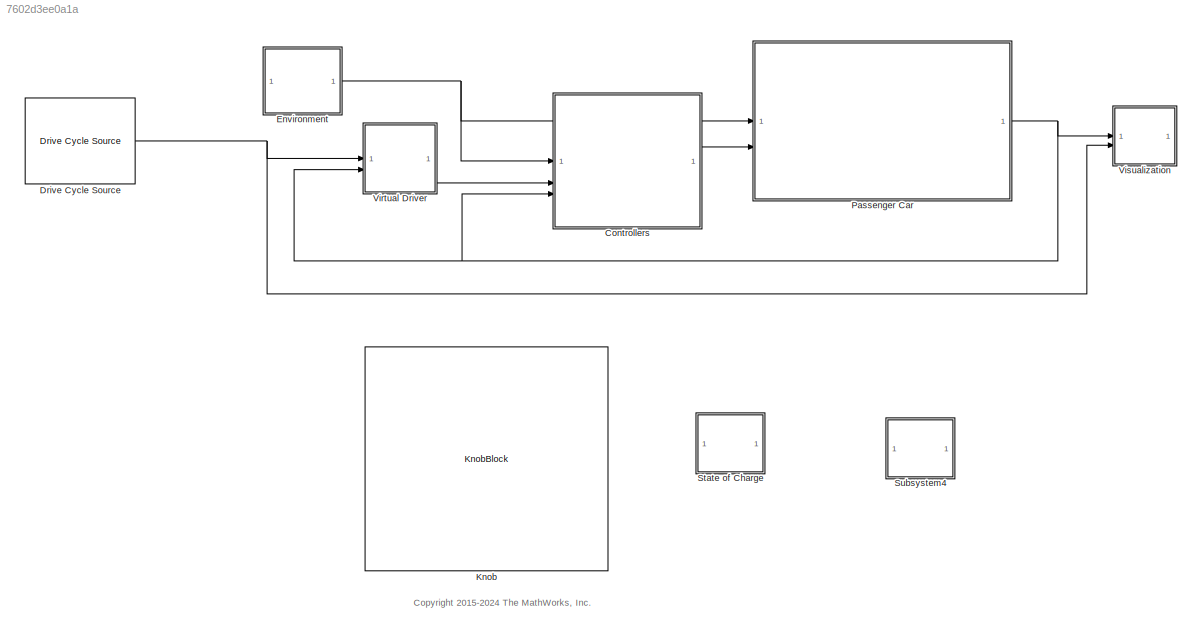
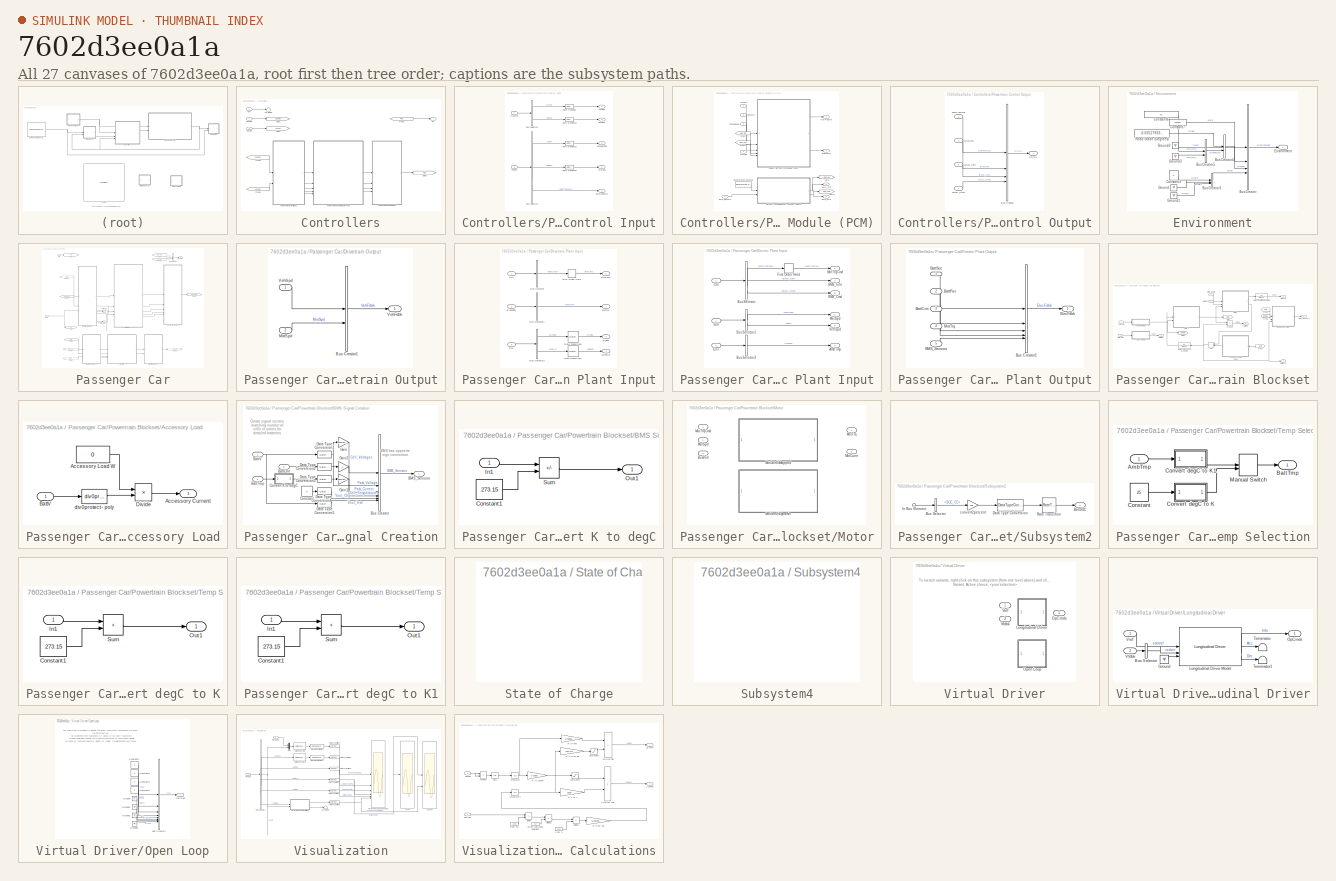
[diagram: thumbnail index - all 27 canvases of the model, root first then tree order]
MODEL slx_7602d3ee0a1a
KIND model
CONFIG AbsTol = auto
CONFIG EnableMultiTasking = off
CONFIG FixedStep = auto
CONFIG MaxStep = auto
CONFIG MinStep = auto
CONFIG RelTol = 1e-3
CONFIG SampleTimeConstraint = Unconstrained
CONFIG SolverName = VariableStepAuto
CONFIG StartTime = 0.0
CONFIG StopTime = 10.0
BLOCK [SubSystem] Controllers
BLOCK [Outport] Controllers/Ctrl
  VectorParamsAs1DForOutWhenUnconnected = off
BLOCK [Inport] Controllers/Env
BLOCK [From] Controllers/From2
  GotoTag = PtCtrl
BLOCK [From] Controllers/From5
  GotoTag = OpCmds
BLOCK [From] Controllers/From6
  GotoTag = VehPlnt
BLOCK [Goto] Controllers/Goto1
  GotoTag = OpCmds
BLOCK [Goto] Controllers/Goto2
  GotoTag = VehPlnt
BLOCK [Goto] Controllers/Goto9
  GotoTag = PtCtrl
BLOCK [Inport] Controllers/OpCmds
  Port = 2
BLOCK [SubSystem] Controllers/Powertrain Control Input
BLOCK [Outport] Controllers/Powertrain Control Input/AccelPdl
  VectorParamsAs1DForOutWhenUnconnected = off
BLOCK [Outport] Controllers/Powertrain Control Input/BMS_Sensors
  OutDataTypeStr = Bus: Sensors
  Port = 5
  VectorParamsAs1DForOutWhenUnconnected = off
BLOCK [BusSelector] Controllers/Powertrain Control Input/Bus Selector1
  OutputSignals = Veh.xdot,Veh.MotSpd,Elec.BMS_Sensors
BLOCK [BusSelector] Controllers/Powertrain Control Input/Bus Selector2
  OutputSignals = Accel,Decel
BLOCK [Outport] Controllers/Powertrain Control Input/DecelPdl
  Port = 2
  VectorParamsAs1DForOutWhenUnconnected = off
BLOCK [Outport] Controllers/Powertrain Control Input/MotSpd
  Port = 4
  VectorParamsAs1DForOutWhenUnconnected = off
BLOCK [Inport] Controllers/Powertrain Control Input/OpCmds
BLOCK [RateTransition] Controllers/Powertrain Control Input/Rate Transition
  Deterministic = off
BLOCK [RateTransition] Controllers/Powertrain Control Input/Rate Transition1
  Deterministic = off
BLOCK [RateTransition] Controllers/Powertrain Control Input/Rate Transition2
  Deterministic = off
BLOCK [RateTransition] Controllers/Powertrain Control Input/Rate Transition6
  Deterministic = off
BLOCK [Inport] Controllers/Powertrain Control Input/VehPlnt
  Port = 2
BLOCK [Outport] Controllers/Powertrain Control Input/VehSpdFdbk
  Port = 3
  VectorParamsAs1DForOutWhenUnconnected = off
BLOCK [SubSystem] Controllers/Powertrain Control Module (PCM)
BLOCK [Inport] Controllers/Powertrain Control Module (PCM)/AccCmd
BLOCK [Outport] Controllers/Powertrain Control Module (PCM)/BMS_Cmd
  OutDataTypeStr = Bus: BMS_Cmd
  Port = 4
BLOCK [Outport] Controllers/Powertrain Control Module (PCM)/BMS_Info
  OutDataTypeStr = Bus: BMS_Info
  Port = 3
BLOCK [Inport] Controllers/Powertrain Control Module (PCM)/BMS_Sensors
  OutDataTypeStr = Bus: Sensors
  Port = 5
BLOCK [ModelReference] Controllers/Powertrain Control Module (PCM)/Battery Management System (BMS)
  ModelNameDialog = BMS_Software.slx
  ModelReferenceVersion = 8.0
BLOCK [Outport] Controllers/Powertrain Control Module (PCM)/BrakeCmd
  Port = 2
BLOCK [Inport] Controllers/Powertrain Control Module (PCM)/DecCmd
  Port = 2
BLOCK [Reference] Controllers/Powertrain Control Module (PCM)/Enumerated Constant  REF=simulink/Sources/Enumerated
Constant
  SourceBlock = simulink/Sources/Enumerated\nConstant
  SourceType = Enumerated Constant
BLOCK [From] Controllers/Powertrain Control Module (PCM)/From
  GotoTag = BMS_Info
BLOCK [From] Controllers/Powertrain Control Module (PCM)/From1
  GotoTag = BMS_Cmd
BLOCK [Goto] Controllers/Powertrain Control Module (PCM)/Goto
  GotoTag = BMS_Info
BLOCK [Goto] Controllers/Powertrain Control Module (PCM)/Goto1
  GotoTag = BMS_Cmd
BLOCK [Inport] Controllers/Powertrain Control Module (PCM)/MotSpd
  Port = 4
BLOCK [Outport] Controllers/Powertrain Control Module (PCM)/MotTrqCmd
BLOCK [ModelReference] Controllers/Powertrain Control Module (PCM)/Powertrain Control Module (PCM)
  ModelNameDialog = EvPowertrainController.slx
  ModelReferenceVersion = 8.0
BLOCK [Inport] Controllers/Powertrain Control Module (PCM)/VehSpdFdbk
  Port = 3
BLOCK [SubSystem] Controllers/Powertrain Control Output
BLOCK [Inport] Controllers/Powertrain Control Output/BMS_Cmd
  OutDataTypeStr = Bus: BMS_Cmd
  Port = 4
BLOCK [Inport] Controllers/Powertrain Control Output/BMS_Info
  OutDataTypeStr = Bus: BMS_Info
  Port = 3
BLOCK [Inport] Controllers/Powertrain Control Output/BrkCmd
  Port = 2
BLOCK [BusCreator] Controllers/Powertrain Control Output/Bus Creator
  DisplayOption = bar
  InheritFromInputs = on
  Inputs = 4
BLOCK [Inport] Controllers/Powertrain Control Output/MotTrqCmd
BLOCK [Outport] Controllers/Powertrain Control Output/PtCtrl
  VectorParamsAs1DForOutWhenUnconnected = off
BLOCK [Terminator] Controllers/Terminator
BLOCK [Inport] Controllers/VehPlnt
  Port = 3
BLOCK [Reference] Drive Cycle Source  REF=autolibshared/Drive Cycle Source
  AttributesFormatString = %<cycleVar> (%<tfinal>)
  LibrarySourceBlock = autolibscenario/Drive Cycle Source
  SourceBlock = autolibshared/Drive Cycle Source
  SourceType = Drive Cycle Source
BLOCK [SubSystem] Environment
BLOCK [BusCreator] Environment/Bus Creator
  DisplayOption = bar
  InheritFromInputs = on
  Inputs = 4
BLOCK [BusCreator] Environment/Bus Creator3
  DisplayOption = bar
  InheritFromInputs = on
  Inputs = 3
BLOCK [BusCreator] Environment/Bus Creator4
  DisplayOption = bar
  InheritFromInputs = on
  Inputs = 2
BLOCK [BusCreator] Environment/Bus Creator5
  DisplayOption = bar
  InheritFromInputs = on
  Inputs = 2
BLOCK [Constant] Environment/Constant3
  Value = 0
BLOCK [Constant] Environment/Constant6
  Value = 20
BLOCK [Constant] Environment/Constant7
  Value = 101325
BLOCK [Outport] Environment/Environment
  VectorParamsAs1DForOutWhenUnconnected = off
BLOCK [Ground] Environment/Ground
BLOCK [Ground] Environment/Ground1
BLOCK [Ground] Environment/Ground2
BLOCK [Ground] Environment/Ground3
BLOCK [Constant] Environment/Road Grade (Degrees)
  AttributesFormatString = %<Name>
  Value = -0.03527933756510393
BLOCK [KnobBlock] Knob
  LabelPosition = Bottom
  ScaleMax = 5
  ScaleMin = -5
  TickInterval = 1
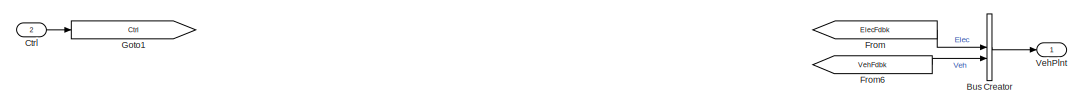
[diagram: Passenger Car - part 1/2, full width, top band]
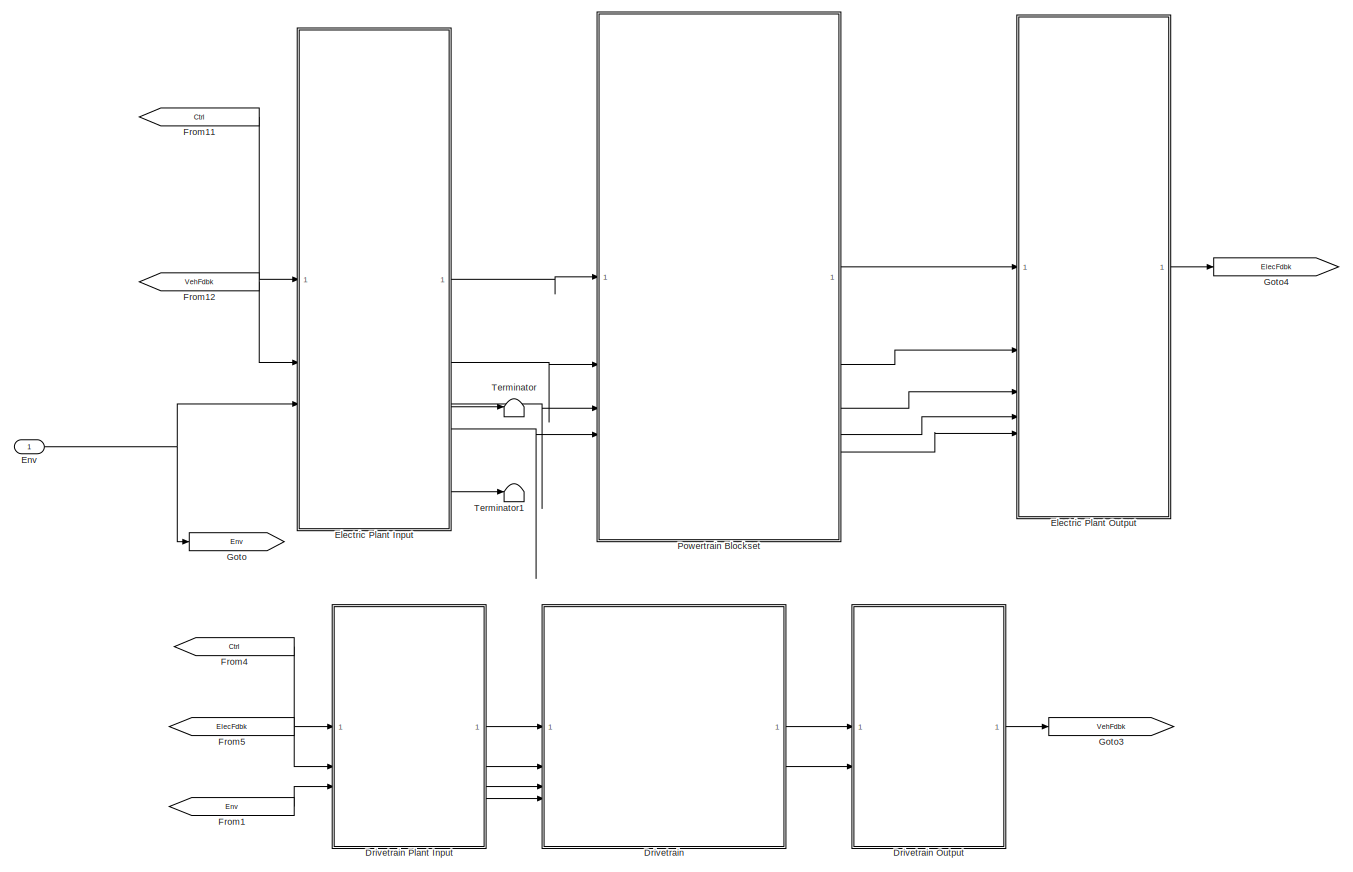
[diagram: Passenger Car - part 2/2, most of the canvas]
BLOCK [SubSystem] Passenger Car
BLOCK [BusCreator] Passenger Car/Bus Creator
  DisplayOption = bar
  InheritFromInputs = on
  Inputs = 2
BLOCK [Inport] Passenger Car/Ctrl
  Port = 2
BLOCK [ModelReference] Passenger Car/Drivetrain
  ModelNameDialog = DrivetrainEv.slx
  ModelReferenceVersion = 10.0
BLOCK [SubSystem] Passenger Car/Drivetrain Output
BLOCK [BusCreator] Passenger Car/Drivetrain Output/Bus Creator1
  DisplayOption = bar
  InheritFromInputs = on
  Inputs = 2
BLOCK [Inport] Passenger Car/Drivetrain Output/MotSpd
  Port = 2
BLOCK [Outport] Passenger Car/Drivetrain Output/VehFdbk
  VectorParamsAs1DForOutWhenUnconnected = off
BLOCK [Inport] Passenger Car/Drivetrain Output/VehSpd
BLOCK [SubSystem] Passenger Car/Drivetrain Plant Input
BLOCK [Outport] Passenger Car/Drivetrain Plant Input/BrkCmd
  Port = 2
  VectorParamsAs1DForOutWhenUnconnected = off
BLOCK [BusSelector] Passenger Car/Drivetrain Plant Input/Bus Selector
  OutputSignals = BrkCmd
BLOCK [BusSelector] Passenger Car/Drivetrain Plant Input/Bus Selector1
  OutputSignals = MotTrq
BLOCK [BusSelector] Passenger Car/Drivetrain Plant Input/Bus Selector3
  OutputSignals = Ground.Grade,Wind.wind_x
BLOCK [Inport] Passenger Car/Drivetrain Plant Input/Ctrl
BLOCK [Inport] Passenger Car/Drivetrain Plant Input/ElecFdbk
  Port = 2
BLOCK [Inport] Passenger Car/Drivetrain Plant Input/Env
  Port = 3
BLOCK [FirstOrderHold] Passenger Car/Drivetrain Plant Input/First Order Hold
  ErrorTolerance = inf
BLOCK [Outport] Passenger Car/Drivetrain Plant Input/Grade
  Port = 3
  VectorParamsAs1DForOutWhenUnconnected = off
BLOCK [Outport] Passenger Car/Drivetrain Plant Input/MotTrq
  VectorParamsAs1DForOutWhenUnconnected = off
BLOCK [RateTransition] Passenger Car/Drivetrain Plant Input/Rate Transition6
  Deterministic = off
BLOCK [RateTransition] Passenger Car/Drivetrain Plant Input/Rate Transition7
  Deterministic = off
BLOCK [Outport] Passenger Car/Drivetrain Plant Input/WindVel
  Port = 4
  VectorParamsAs1DForOutWhenUnconnected = off
BLOCK [SubSystem] Passenger Car/Electric Plant Input
BLOCK [Outport] Passenger Car/Electric Plant Input/AmbTmp
  Port = 3
  VectorParamsAs1DForOutWhenUnconnected = off
BLOCK [Outport] Passenger Car/Electric Plant Input/BMS_Cmd
  OutDataTypeStr = Bus: BMS_Cmd
  Port = 5
  VectorParamsAs1DForOutWhenUnconnected = off
BLOCK [Outport] Passenger Car/Electric Plant Input/BMS_Info
  OutDataTypeStr = Bus: BMS_Info
  Port = 4
  VectorParamsAs1DForOutWhenUnconnected = off
BLOCK [BusSelector] Passenger Car/Electric Plant Input/Bus Selector
  OutputSignals = MotTrqCmd,BMS_Info,BMS_Cmd
BLOCK [BusSelector] Passenger Car/Electric Plant Input/Bus Selector1
  OutputSignals = MotSpd,xdot
BLOCK [BusSelector] Passenger Car/Electric Plant Input/Bus Selector2
  OutputSignals = Temp
BLOCK [Inport] Passenger Car/Electric Plant Input/Ctrl
BLOCK [Inport] Passenger Car/Electric Plant Input/Env
  Port = 3
BLOCK [FirstOrderHold] Passenger Car/Electric Plant Input/First Order Hold
  ErrorTolerance = inf
BLOCK [Outport] Passenger Car/Electric Plant Input/MotSpd
  Port = 2
  VectorParamsAs1DForOutWhenUnconnected = off
BLOCK [Outport] Passenger Car/Electric Plant Input/MotTrqCmd
  VectorParamsAs1DForOutWhenUnconnected = off
BLOCK [Inport] Passenger Car/Electric Plant Input/Veh
  Port = 2
BLOCK [Outport] Passenger Car/Electric Plant Input/VehSpd
  Port = 6
  VectorParamsAs1DForOutWhenUnconnected = off
BLOCK [SubSystem] Passenger Car/Electric Plant Output
BLOCK [Inport] Passenger Car/Electric Plant Output/BMS_Sensors
  OutDataTypeStr = Bus: Sensors
  Port = 5
BLOCK [Inport] Passenger Car/Electric Plant Output/BattCrnt
  Port = 3
BLOCK [Inport] Passenger Car/Electric Plant Output/BattPwr
  Port = 2
BLOCK [Inport] Passenger Car/Electric Plant Output/BattSoc
BLOCK [BusCreator] Passenger Car/Electric Plant Output/Bus Creator1
  DisplayOption = bar
  InheritFromInputs = on
  Inputs = 5
BLOCK [Outport] Passenger Car/Electric Plant Output/ElecFdbk
  VectorParamsAs1DForOutWhenUnconnected = off
BLOCK [Inport] Passenger Car/Electric Plant Output/MotTrq
  Port = 4
BLOCK [Inport] Passenger Car/Env
BLOCK [From] Passenger Car/From
  GotoTag = ElecFdbk
BLOCK [From] Passenger Car/From1
  GotoTag = Env
BLOCK [From] Passenger Car/From11
  GotoTag = Ctrl
BLOCK [From] Passenger Car/From12
  GotoTag = VehFdbk
BLOCK [From] Passenger Car/From4
  GotoTag = Ctrl
BLOCK [From] Passenger Car/From5
  GotoTag = ElecFdbk
BLOCK [From] Passenger Car/From6
  GotoTag = VehFdbk
BLOCK [Goto] Passenger Car/Goto
  GotoTag = Env
BLOCK [Goto] Passenger Car/Goto1
  GotoTag = Ctrl
BLOCK [Goto] Passenger Car/Goto3
  GotoTag = VehFdbk
BLOCK [Goto] Passenger Car/Goto4
  GotoTag = ElecFdbk
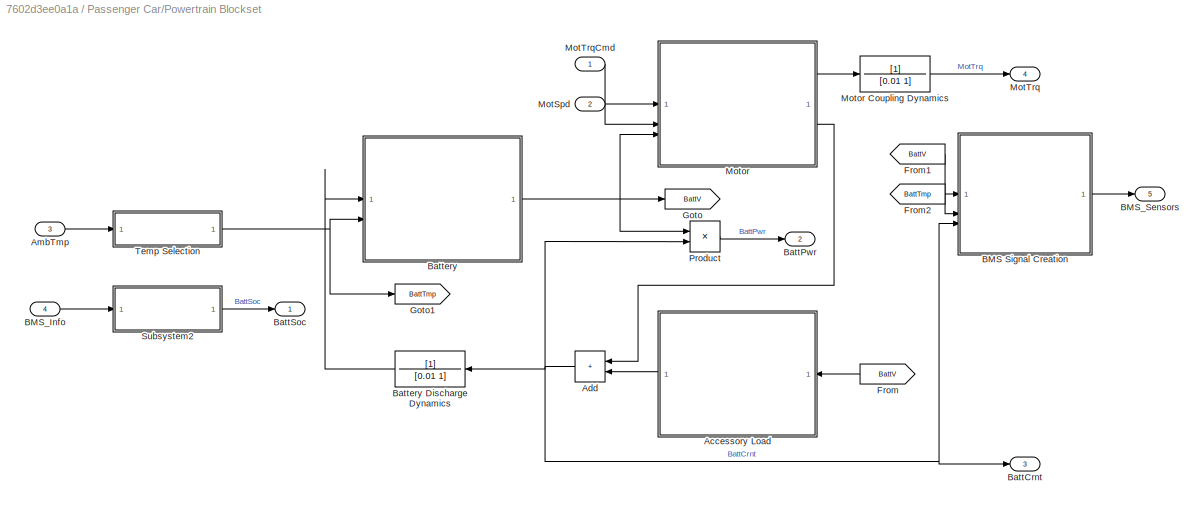
BLOCK [SubSystem] Passenger Car/Powertrain Blockset
  VariantControl = Powertrain Blockset
BLOCK [SubSystem] Passenger Car/Powertrain Blockset/Accessory Load
BLOCK [Outport] Passenger Car/Powertrain Blockset/Accessory Load/Accessory Current
BLOCK [Constant] Passenger Car/Powertrain Blockset/Accessory Load/Accessory Load W
  Value = 0
BLOCK [Inport] Passenger Car/Powertrain Blockset/Accessory Load/BattV
BLOCK [Product] Passenger Car/Powertrain Blockset/Accessory Load/Divide
  Inputs = */
BLOCK [Reference] Passenger Car/Powertrain Blockset/Accessory Load/div0protect - poly  REF=autolibutils/div0protect - poly
  SourceBlock = autolibutils/div0protect - poly
BLOCK [Sum] Passenger Car/Powertrain Blockset/Add
  IconShape = rectangular
BLOCK [Inport] Passenger Car/Powertrain Blockset/AmbTmp
  Port = 3
BLOCK [SubSystem] Passenger Car/Powertrain Blockset/BMS Signal Creation
BLOCK [Outport] Passenger Car/Powertrain Blockset/BMS Signal Creation/BMS_Sensors
BLOCK [Inport] Passenger Car/Powertrain Blockset/BMS Signal Creation/BattCrnt
  Port = 3
BLOCK [Inport] Passenger Car/Powertrain Blockset/BMS Signal Creation/BattTmp
  Port = 2
BLOCK [Inport] Passenger Car/Powertrain Blockset/BMS Signal Creation/BattV
BLOCK [BusCreator] Passenger Car/Powertrain Blockset/BMS Signal Creation/Bus Creator
  DisplayOption = bar
  InheritFromInputs = off
  Inputs = 6
  NonVirtualBus = on
  OutDataTypeStr = Bus: Sensors
BLOCK [Constant] Passenger Car/Powertrain Blockset/BMS Signal Creation/Constant
  Value = 0
BLOCK [SubSystem] Passenger Car/Powertrain Blockset/BMS Signal Creation/Convert K to degC
BLOCK [Constant] Passenger Car/Powertrain Blockset/BMS Signal Creation/Convert K to degC/Constant1
  Value = 273.15
BLOCK [Inport] Passenger Car/Powertrain Blockset/BMS Signal Creation/Convert K to degC/In1
BLOCK [Outport] Passenger Car/Powertrain Blockset/BMS Signal Creation/Convert K to degC/Out1
BLOCK [Sum] Passenger Car/Powertrain Blockset/BMS Signal Creation/Convert K to degC/Sum
  IconShape = rectangular
  Inputs = +-
BLOCK [DataTypeConversion] Passenger Car/Powertrain Blockset/BMS Signal Creation/Data Type Conversion1
  OutDataTypeStr = single
  RndMeth = Floor
  SaturateOnIntegerOverflow = off
BLOCK [DataTypeConversion] Passenger Car/Powertrain Blockset/BMS Signal Creation/Data Type Conversion2
  OutDataTypeStr = single
  RndMeth = Floor
  SaturateOnIntegerOverflow = off
BLOCK [DataTypeConversion] Passenger Car/Powertrain Blockset/BMS Signal Creation/Data Type Conversion3
  OutDataTypeStr = single
  RndMeth = Floor
  SaturateOnIntegerOverflow = off
BLOCK [DataTypeConversion] Passenger Car/Powertrain Blockset/BMS Signal Creation/Data Type Conversion4
  OutDataTypeStr = single
  RndMeth = Floor
  SaturateOnIntegerOverflow = off
BLOCK [DataTypeConversion] Passenger Car/Powertrain Blockset/BMS Signal Creation/Data Type Conversion5
  OutDataTypeStr = single
  RndMeth = Floor
  SaturateOnIntegerOverflow = off
BLOCK [Gain] Passenger Car/Powertrain Blockset/BMS Signal Creation/Gain
  Gain = ones(96,1)./96
BLOCK [Gain] Passenger Car/Powertrain Blockset/BMS Signal Creation/Gain1
  Gain = ones(96,1)
BLOCK [Gain] Passenger Car/Powertrain Blockset/BMS Signal Creation/Gain2
  Gain = -1
BLOCK [Inport] Passenger Car/Powertrain Blockset/BMS_Info
  OutDataTypeStr = Bus: BMS_Info
  Port = 4
BLOCK [Outport] Passenger Car/Powertrain Blockset/BMS_Sensors
  OutDataTypeStr = Bus: Sensors
  Port = 5
  VectorParamsAs1DForOutWhenUnconnected = off
BLOCK [Outport] Passenger Car/Powertrain Blockset/BattCrnt
  Port = 3
  VectorParamsAs1DForOutWhenUnconnected = off
BLOCK [Outport] Passenger Car/Powertrain Blockset/BattPwr
  Port = 2
  VectorParamsAs1DForOutWhenUnconnected = off
BLOCK [Outport] Passenger Car/Powertrain Blockset/BattSoc
BLOCK [ModelReference] Passenger Car/Powertrain Blockset/Battery
  ModelNameDialog = BattEv.slx
  ModelReferenceVersion = 12.4
BLOCK [TransferFcn] Passenger Car/Powertrain Blockset/Battery Discharge Dynamics
  Denominator = [0.01 1]
BLOCK [From] Passenger Car/Powertrain Blockset/From
  GotoTag = BattV
  NameLocation = top
BLOCK [From] Passenger Car/Powertrain Blockset/From1
  GotoTag = BattV
BLOCK [From] Passenger Car/Powertrain Blockset/From2
  GotoTag = BattTmp
BLOCK [Goto] Passenger Car/Powertrain Blockset/Goto
  GotoTag = BattV
BLOCK [Goto] Passenger Car/Powertrain Blockset/Goto1
  GotoTag = BattTmp
BLOCK [Inport] Passenger Car/Powertrain Blockset/MotSpd
  Port = 2
BLOCK [Outport] Passenger Car/Powertrain Blockset/MotTrq
  Port = 4
  VectorParamsAs1DForOutWhenUnconnected = off
BLOCK [Inport] Passenger Car/Powertrain Blockset/MotTrqCmd
BLOCK [SubSystem] Passenger Car/Powertrain Blockset/Motor
  LabelModeActiveChoice = MotGenEvMapped
  Variant = on
  VariantControlMode = label
BLOCK [TransferFcn] Passenger Car/Powertrain Blockset/Motor Coupling Dynamics
  Denominator = [0.01 1]
BLOCK [Inport] Passenger Car/Powertrain Blockset/Motor/BusVolt
  Port = 3
BLOCK [Outport] Passenger Car/Powertrain Blockset/Motor/MotCurnt
  Port = 2
  VectorParamsAs1DForOutWhenUnconnected = off
BLOCK [ModelReference] Passenger Car/Powertrain Blockset/Motor/MotGenEvDynamic
  ModelNameDialog = MotGenEvDynamic.slx
  ModelReferenceVersion = 11.0
  VariantControl = MotGenEvDynamic
BLOCK [ModelReference] Passenger Car/Powertrain Blockset/Motor/MotGenEvMapped
  ModelNameDialog = MotGenEvMapped.slx
  ModelReferenceVersion = 9.0
  VariantControl = MotGenEvMapped
BLOCK [Inport] Passenger Car/Powertrain Blockset/Motor/MotSpd
  Port = 2
BLOCK [Outport] Passenger Car/Powertrain Blockset/Motor/MotTrq
  VectorParamsAs1DForOutWhenUnconnected = off
BLOCK [Inport] Passenger Car/Powertrain Blockset/Motor/MotTrqCmd
BLOCK [Product] Passenger Car/Powertrain Blockset/Product
BLOCK [SubSystem] Passenger Car/Powertrain Blockset/Subsystem2
BLOCK [Outport] Passenger Car/Powertrain Blockset/Subsystem2/BattSOC
BLOCK [BusSelector] Passenger Car/Powertrain Blockset/Subsystem2/Bus Selector
  OutputSignals = SOC_CC
BLOCK [DataTypeConversion] Passenger Car/Powertrain Blockset/Subsystem2/Data Type Conversion
  RndMeth = Floor
  SaturateOnIntegerOverflow = off
BLOCK [Inport] Passenger Car/Powertrain Blockset/Subsystem2/In Bus Element
BLOCK [RateTransition] Passenger Car/Powertrain Blockset/Subsystem2/Rate Transition
  Commented = through
BLOCK [Gain] Passenger Car/Powertrain Blockset/Subsystem2/convert2percent
  Gain = 100
BLOCK [SubSystem] Passenger Car/Powertrain Blockset/Temp Selection
BLOCK [Inport] Passenger Car/Powertrain Blockset/Temp Selection/AmbTmp
BLOCK [Outport] Passenger Car/Powertrain Blockset/Temp Selection/BattTmp
BLOCK [Constant] Passenger Car/Powertrain Blockset/Temp Selection/Constant
  Value = 25
BLOCK [SubSystem] Passenger Car/Powertrain Blockset/Temp Selection/Convert degC to K
BLOCK [Constant] Passenger Car/Powertrain Blockset/Temp Selection/Convert degC to K/Constant1
  Value = 273.15
BLOCK [Inport] Passenger Car/Powertrain Blockset/Temp Selection/Convert degC to K/In1
BLOCK [Outport] Passenger Car/Powertrain Blockset/Temp Selection/Convert degC to K/Out1
BLOCK [Sum] Passenger Car/Powertrain Blockset/Temp Selection/Convert degC to K/Sum
  IconShape = rectangular
BLOCK [SubSystem] Passenger Car/Powertrain Blockset/Temp Selection/Convert degC to K1
BLOCK [Constant] Passenger Car/Powertrain Blockset/Temp Selection/Convert degC to K1/Constant1
  Value = 273.15
BLOCK [Inport] Passenger Car/Powertrain Blockset/Temp Selection/Convert degC to K1/In1
BLOCK [Outport] Passenger Car/Powertrain Blockset/Temp Selection/Convert degC to K1/Out1
BLOCK [Sum] Passenger Car/Powertrain Blockset/Temp Selection/Convert degC to K1/Sum
  IconShape = rectangular
BLOCK [ManualSwitch] Passenger Car/Powertrain Blockset/Temp Selection/Manual Switch
BLOCK [Terminator] Passenger Car/Terminator
BLOCK [Terminator] Passenger Car/Terminator1
BLOCK [Outport] Passenger Car/VehPlnt
  VectorParamsAs1DForOutWhenUnconnected = off
BLOCK [SubSystem] State of Charge
  OpenFcn = open_system('EvReferenceApplication/Visualization/Scope');
BLOCK [SubSystem] Subsystem4
  OpenFcn = helpview([docroot,'/toolbox/autoblks/helptargets.map'], 'ev_refapp')
BLOCK [SubSystem] Virtual Driver
  LabelModeActiveChoice = 0
  Variant = on
  VariantControl = Variant1
  VariantControlMode = label
BLOCK [Outport] Virtual Driver/ OpCmds
  VectorParamsAs1DForOutWhenUnconnected = off
BLOCK [SubSystem] Virtual Driver/Longitudinal Driver
  VariantControl = 0
BLOCK [BusSelector] Virtual Driver/Longitudinal Driver/Bus Selector
  OutputSignals = Veh.xdot
BLOCK [Ground] Virtual Driver/Longitudinal Driver/Ground
BLOCK [Reference] Virtual Driver/Longitudinal Driver/Longitudinal Driver Model  REF=autolibshared/Longitudinal Driver
  LibrarySourceBlock = autolibscenario/Longitudinal Driver
  SourceBlock = autolibshared/Longitudinal Driver
  SourceType = Longitudinal Driver
BLOCK [Outport] Virtual Driver/Longitudinal Driver/OpCmds
  VectorParamsAs1DForOutWhenUnconnected = off
BLOCK [Terminator] Virtual Driver/Longitudinal Driver/Terminator
BLOCK [Terminator] Virtual Driver/Longitudinal Driver/Terminator1
BLOCK [Inport] Virtual Driver/Longitudinal Driver/Vfdbk
  Port = 2
BLOCK [Inport] Virtual Driver/Longitudinal Driver/Vref
BLOCK [SubSystem] Virtual Driver/Open Loop
  VariantControl = 1
BLOCK [BusCreator] Virtual Driver/Open Loop/Bus Creator2
  DisplayOption = bar
  InheritFromInputs = on
  Inputs = 8
BLOCK [Constant] Virtual Driver/Open Loop/Constant1
  Value = 0
BLOCK [Constant] Virtual Driver/Open Loop/Constant2
  Value = 0
BLOCK [Constant] Virtual Driver/Open Loop/Constant3
  Value = 0
BLOCK [Constant] Virtual Driver/Open Loop/Constant4
  Value = 0
BLOCK [Ground] Virtual Driver/Open Loop/Ground
BLOCK [Ground] Virtual Driver/Open Loop/Ground1
BLOCK [Ground] Virtual Driver/Open Loop/Ground2
BLOCK [Ground] Virtual Driver/Open Loop/Ground3
BLOCK [Outport] Virtual Driver/Open Loop/OpCmds
  VectorParamsAs1DForOutWhenUnconnected = off
BLOCK [Inport] Virtual Driver/Vfdbk 
  Port = 2
BLOCK [Inport] Virtual Driver/Vref 
BLOCK [SubSystem] Visualization
BLOCK [BusSelector] Visualization/Bus Selector1
  OutputSignals = Veh.xdot,Veh.MotSpd,Elec.MotTrq,Elec.BattSoc,Elec.BattCrnt,Elec.BattPwr
BLOCK [Mux] Visualization/Mux
  DisplayOption = bar
  Inputs = 2
BLOCK [SubSystem] Visualization/Performance Calculations
BLOCK [Inport] Visualization/Performance Calculations/BattPwr
BLOCK [Product] Visualization/Performance Calculations/Divide
  Inputs = */
BLOCK [Product] Visualization/Performance Calculations/Divide1
  Inputs = */
BLOCK [Product] Visualization/Performance Calculations/Divide2
  Inputs = */
BLOCK [Integrator] Visualization/Performance Calculations/Integrator
BLOCK [Integrator] Visualization/Performance Calculations/Integrator1
BLOCK [Product] Visualization/Performance Calculations/L//100 Km Calc
  Inputs = /*
BLOCK [Outport] Visualization/Performance Calculations/L//100Km
  Port = 2
  VectorParamsAs1DForOutWhenUnconnected = off
BLOCK [Product] Visualization/Performance Calculations/Product
BLOCK [Saturate] Visualization/Performance Calculations/Saturation
  LowerLimit = 0.001
  UpperLimit = Inf
  ZeroCross = off
BLOCK [Saturate] Visualization/Performance Calculations/Saturation1
  LowerLimit = 1e-3
  UpperLimit = Inf
  ZeroCross = off
BLOCK [Sqrt] Visualization/Performance Calculations/Sqrt
BLOCK [Constant] Visualization/Performance Calculations/US EPA kwh//USgal equivalent
  Value = 33.7
BLOCK [Outport] Visualization/Performance Calculations/US MPG
  VectorParamsAs1DForOutWhenUnconnected = off
BLOCK [Product] Visualization/Performance Calculations/US MPG Calc
  Inputs = */
BLOCK [Inport] Visualization/Performance Calculations/VehSpd
  Port = 2
BLOCK [Gain] Visualization/Performance Calculations/m to 100Km
  Gain = 1/1000/100
BLOCK [Gain] Visualization/Performance Calculations/m to mile
  Gain = 0.000621371
BLOCK [Gain] Visualization/Performance Calculations/m^3 per gal
  Gain = 0.00378541
BLOCK [Gain] Visualization/Performance Calculations/m^3 to L
  Gain = 1000
BLOCK [Gain] Visualization/Performance Calculations/m^3 to US Gal
  Gain = 264.172
BLOCK [Constant] Visualization/Performance Calculations/s per h
  Value = 3600
BLOCK [Constant] Visualization/Performance Calculations/w per kw
  Value = 1000
BLOCK [Scope] Visualization/Performance and FE Scope
  Floating = off
  NumInputPorts = 6
  ScopeSpecificationString = Simulink.scopes.TimeScopeBlockCfg('CurrentConfiguration', extmgr.ConfigurationSet(extmgr.Configuration('Core','General UI',true),extmgr.Configuration('Core','Source UI',true),extmgr.Configuration('Sources','WiredSimulink',true,'SampleTime','0.1'),extmgr.Configuration('Visuals','Time Domain',true,'SerializedDisplays',{struct('MinYLimReal','-7.08752','MaxYLimReal','63.78761','YLabelReal','','MinYLim...<+5799ch>
BLOCK [RateTransition] Visualization/Rate Transition1
  Deterministic = off
BLOCK [RateTransition] Visualization/Rate Transition2
  Deterministic = off
BLOCK [RateTransition] Visualization/Rate Transition3
  Deterministic = off
BLOCK [RateTransition] Visualization/Rate Transition4
  Deterministic = off
BLOCK [RateTransition] Visualization/Rate Transition5
  Deterministic = off
BLOCK [RateTransition] Visualization/Rate Transition6
  Deterministic = off
BLOCK [Scope] Visualization/Scope
  Floating = off
  NumInputPorts = 1
  ScopeSpecificationString = Simulink.scopes.TimeScopeBlockCfg('CurrentConfiguration', extmgr.ConfigurationSet(extmgr.Configuration('Core','General UI',true),extmgr.Configuration('Core','Source UI',true),extmgr.Configuration('Sources','WiredSimulink',true,'SampleTime','0.1','DataLoggingVariableName','ScopeData1'),extmgr.Configuration('Visuals','Time Domain',true,'SerializedDisplays',{struct('MinYLimReal','70.818','MaxYLimReal...<+1727ch>
BLOCK [Scope] Visualization/Scope1
  Floating = off
  NumInputPorts = 2
  ScopeSpecificationString = Simulink.scopes.TimeScopeBlockCfg('CurrentConfiguration', extmgr.ConfigurationSet(extmgr.Configuration('Core','General UI',true),extmgr.Configuration('Core','Source UI',true),extmgr.Configuration('Sources','WiredSimulink',true,'SampleTime','0.1','DataLoggingVariableName','ScopeData2'),extmgr.Configuration('Visuals','Time Domain',true,'SerializedDisplays',{struct('MinYLimReal','70.77506','MaxYLimRe...<+2386ch>
BLOCK [SignalSpecification] Visualization/Signal Specification
  Unit = mph
BLOCK [SignalSpecification] Visualization/Signal Specification1
  Unit = rpm
BLOCK [Terminator] Visualization/Terminator
BLOCK [UnitConversion] Visualization/Unit Conversion
BLOCK [UnitConversion] Visualization/Unit Conversion1
BLOCK [Inport] Visualization/Veh Bus
BLOCK [Inport] Visualization/VelocityRef
  Port = 2
ANNOTATION (root): <copyright redacted>
ANNOTATION Passenger Car/Powertrain Blockset/BMS Signal Creation: BMS has opposite sign convention
ANNOTATION Passenger Car/Powertrain Blockset/BMS Signal Creation: Create signal vectors matching number of cells in series for detailed batteries
ANNOTATION Virtual Driver: To switch variants, right-click on this subsystem (from one level above) and chose: Variant, Active choice,
ANNOTATION Virtual Driver/Open Loop: This subsystem is provided to disable the driver subsystem and expose the driver interface. The interface can: - be connected with dashboard UI blocks or 3rd party hardware - provide application specific pre-programmed event or time based signals - be driven by recorded operator signals for tuning, troubleshooting and model validation
LINE Controllers/Env:1 -> Controllers/Terminator:1
LINE Controllers/From2:1 -> Controllers/Ctrl:1
LINE Controllers/From5:1 -> Controllers/Powertrain Control Input:1
LINE Controllers/From6:1 -> Controllers/Powertrain Control Input:2
LINE Controllers/OpCmds:1 -> Controllers/Goto1:1
LINE Controllers/Powertrain Control Input/Bus Selector1:1 -> Controllers/Powertrain Control Input/Rate Transition2:1
LINE Controllers/Powertrain Control Input/Bus Selector1:2 -> Controllers/Powertrain Control Input/Rate Transition6:1
LINE Controllers/Powertrain Control Input/Bus Selector1:3 -> Controllers/Powertrain Control Input/BMS_Sensors:1
LINE Controllers/Powertrain Control Input/Bus Selector2:1 -> Controllers/Powertrain Control Input/Rate Transition:1
LINE Controllers/Powertrain Control Input/Bus Selector2:2 -> Controllers/Powertrain Control Input/Rate Transition1:1
LINE Controllers/Powertrain Control Input/OpCmds:1 -> Controllers/Powertrain Control Input/Bus Selector2:1
LINE Controllers/Powertrain Control Input/Rate Transition1:1 -> Controllers/Powertrain Control Input/DecelPdl:1
LINE Controllers/Powertrain Control Input/Rate Transition2:1 -> Controllers/Powertrain Control Input/VehSpdFdbk:1
LINE Controllers/Powertrain Control Input/Rate Transition6:1 -> Controllers/Powertrain Control Input/MotSpd:1
LINE Controllers/Powertrain Control Input/Rate Transition:1 -> Controllers/Powertrain Control Input/AccelPdl:1
LINE Controllers/Powertrain Control Input/VehPlnt:1 -> Controllers/Powertrain Control Input/Bus Selector1:1
LINE Controllers/Powertrain Control Input:1 -> Controllers/Powertrain Control Module (PCM):1
LINE Controllers/Powertrain Control Input:2 -> Controllers/Powertrain Control Module (PCM):2
LINE Controllers/Powertrain Control Input:3 -> Controllers/Powertrain Control Module (PCM):3
LINE Controllers/Powertrain Control Input:4 -> Controllers/Powertrain Control Module (PCM):4
LINE Controllers/Powertrain Control Input:5 -> Controllers/Powertrain Control Module (PCM):5
LINE Controllers/Powertrain Control Module (PCM)/AccCmd:1 -> Controllers/Powertrain Control Module (PCM)/Powertrain Control Module (PCM):1
LINE Controllers/Powertrain Control Module (PCM)/BMS_Sensors:1 -> Controllers/Powertrain Control Module (PCM)/Battery Management System (BMS):2
NET Controllers/Powertrain Control Module (PCM)/Battery Management System (BMS):1 -> Controllers/Powertrain Control Module (PCM)/BMS_Info:1, Controllers/Powertrain Control Module (PCM)/Goto:1
NET Controllers/Powertrain Control Module (PCM)/Battery Management System (BMS):2 -> Controllers/Powertrain Control Module (PCM)/BMS_Cmd:1, Controllers/Powertrain Control Module (PCM)/Goto1:1
LINE Controllers/Powertrain Control Module (PCM)/DecCmd:1 -> Controllers/Powertrain Control Module (PCM)/Powertrain Control Module (PCM):2
LINE Controllers/Powertrain Control Module (PCM)/Enumerated Constant:1 -> Controllers/Powertrain Control Module (PCM)/Battery Management System (BMS):1
LINE Controllers/Powertrain Control Module (PCM)/From1:1 -> Controllers/Powertrain Control Module (PCM)/Powertrain Control Module (PCM):5
LINE Controllers/Powertrain Control Module (PCM)/From:1 -> Controllers/Powertrain Control Module (PCM)/Powertrain Control Module (PCM):4
LINE Controllers/Powertrain Control Module (PCM)/Powertrain Control Module (PCM):1 -> Controllers/Powertrain Control Module (PCM)/MotTrqCmd:1
LINE Controllers/Powertrain Control Module (PCM)/Powertrain Control Module (PCM):2 -> Controllers/Powertrain Control Module (PCM)/BrakeCmd:1
LINE Controllers/Powertrain Control Module (PCM)/VehSpdFdbk:1 -> Controllers/Powertrain Control Module (PCM)/Powertrain Control Module (PCM):3
LINE Controllers/Powertrain Control Module (PCM):1 -> Controllers/Powertrain Control Output:1
LINE Controllers/Powertrain Control Module (PCM):2 -> Controllers/Powertrain Control Output:2
LINE Controllers/Powertrain Control Module (PCM):3 -> Controllers/Powertrain Control Output:3
LINE Controllers/Powertrain Control Module (PCM):4 -> Controllers/Powertrain Control Output:4
LINE Controllers/Powertrain Control Output/BMS_Cmd:1 -> Controllers/Powertrain Control Output/Bus Creator:4
LINE Controllers/Powertrain Control Output/BMS_Info:1 -> Controllers/Powertrain Control Output/Bus Creator:3
LINE Controllers/Powertrain Control Output/BrkCmd:1 -> Controllers/Powertrain Control Output/Bus Creator:2
LINE Controllers/Powertrain Control Output/Bus Creator:1 -> Controllers/Powertrain Control Output/PtCtrl:1
LINE Controllers/Powertrain Control Output/MotTrqCmd:1 -> Controllers/Powertrain Control Output/Bus Creator:1
LINE Controllers/Powertrain Control Output:1 -> Controllers/Goto9:1
LINE Controllers/VehPlnt:1 -> Controllers/Goto2:1
LINE Controllers:1 -> Passenger Car:2
NET Drive Cycle Source:1 -> Virtual Driver:1, Visualization:2
LINE Environment/Bus Creator3:1 -> Environment/Bus Creator:4
LINE Environment/Bus Creator4:1 -> Environment/Bus Creator:3
LINE Environment/Bus Creator5:1 -> Environment/Bus Creator4:2
LINE Environment/Bus Creator:1 -> Environment/Environment:1
LINE Environment/Constant3:1 -> Environment/Bus Creator3:1
LINE Environment/Constant6:1 -> Environment/Bus Creator:1
LINE Environment/Constant7:1 -> Environment/Bus Creator:2
LINE Environment/Ground1:1 -> Environment/Bus Creator3:3
LINE Environment/Ground2:1 -> Environment/Bus Creator5:1
LINE Environment/Ground3:1 -> Environment/Bus Creator5:2
LINE Environment/Ground:1 -> Environment/Bus Creator3:2
LINE Environment/Road Grade (Degrees):1 -> Environment/Bus Creator4:1
NET Environment:1 -> Controllers:1, Passenger Car:1
LINE Passenger Car/Bus Creator:1 -> Passenger Car/VehPlnt:1
LINE Passenger Car/Ctrl:1 -> Passenger Car/Goto1:1
LINE Passenger Car/Drivetrain Output/Bus Creator1:1 -> Passenger Car/Drivetrain Output/VehFdbk:1
LINE Passenger Car/Drivetrain Output/MotSpd:1 -> Passenger Car/Drivetrain Output/Bus Creator1:2
LINE Passenger Car/Drivetrain Output/VehSpd:1 -> Passenger Car/Drivetrain Output/Bus Creator1:1
LINE Passenger Car/Drivetrain Output:1 -> Passenger Car/Goto3:1
LINE Passenger Car/Drivetrain Plant Input/Bus Selector1:1 -> Passenger Car/Drivetrain Plant Input/MotTrq:1
LINE Passenger Car/Drivetrain Plant Input/Bus Selector3:1 -> Passenger Car/Drivetrain Plant Input/Rate Transition6:1
LINE Passenger Car/Drivetrain Plant Input/Bus Selector3:2 -> Passenger Car/Drivetrain Plant Input/Rate Transition7:1
LINE Passenger Car/Drivetrain Plant Input/Bus Selector:1 -> Passenger Car/Drivetrain Plant Input/First Order Hold:1
LINE Passenger Car/Drivetrain Plant Input/Ctrl:1 -> Passenger Car/Drivetrain Plant Input/Bus Selector:1
LINE Passenger Car/Drivetrain Plant Input/ElecFdbk:1 -> Passenger Car/Drivetrain Plant Input/Bus Selector1:1
LINE Passenger Car/Drivetrain Plant Input/Env:1 -> Passenger Car/Drivetrain Plant Input/Bus Selector3:1
LINE Passenger Car/Drivetrain Plant Input/First Order Hold:1 -> Passenger Car/Drivetrain Plant Input/BrkCmd:1
LINE Passenger Car/Drivetrain Plant Input/Rate Transition6:1 -> Passenger Car/Drivetrain Plant Input/Grade:1
LINE Passenger Car/Drivetrain Plant Input/Rate Transition7:1 -> Passenger Car/Drivetrain Plant Input/WindVel:1
LINE Passenger Car/Drivetrain Plant Input:1 -> Passenger Car/Drivetrain:1
LINE Passenger Car/Drivetrain Plant Input:2 -> Passenger Car/Drivetrain:2
LINE Passenger Car/Drivetrain Plant Input:3 -> Passenger Car/Drivetrain:3
LINE Passenger Car/Drivetrain Plant Input:4 -> Passenger Car/Drivetrain:4
LINE Passenger Car/Drivetrain:1 -> Passenger Car/Drivetrain Output:1
LINE Passenger Car/Drivetrain:2 -> Passenger Car/Drivetrain Output:2
LINE Passenger Car/Electric Plant Input/Bus Selector1:1 -> Passenger Car/Electric Plant Input/MotSpd:1
LINE Passenger Car/Electric Plant Input/Bus Selector1:2 -> Passenger Car/Electric Plant Input/VehSpd:1
LINE Passenger Car/Electric Plant Input/Bus Selector2:1 -> Passenger Car/Electric Plant Input/AmbTmp:1
LINE Passenger Car/Electric Plant Input/Bus Selector:1 -> Passenger Car/Electric Plant Input/First Order Hold:1
LINE Passenger Car/Electric Plant Input/Bus Selector:2 -> Passenger Car/Electric Plant Input/BMS_Info:1
LINE Passenger Car/Electric Plant Input/Bus Selector:3 -> Passenger Car/Electric Plant Input/BMS_Cmd:1
LINE Passenger Car/Electric Plant Input/Ctrl:1 -> Passenger Car/Electric Plant Input/Bus Selector:1
LINE Passenger Car/Electric Plant Input/Env:1 -> Passenger Car/Electric Plant Input/Bus Selector2:1
LINE Passenger Car/Electric Plant Input/First Order Hold:1 -> Passenger Car/Electric Plant Input/MotTrqCmd:1
LINE Passenger Car/Electric Plant Input/Veh:1 -> Passenger Car/Electric Plant Input/Bus Selector1:1
LINE Passenger Car/Electric Plant Input:1 -> Passenger Car/Powertrain Blockset:1
LINE Passenger Car/Electric Plant Input:2 -> Passenger Car/Powertrain Blockset:2
LINE Passenger Car/Electric Plant Input:3 -> Passenger Car/Powertrain Blockset:3
LINE Passenger Car/Electric Plant Input:4 -> Passenger Car/Powertrain Blockset:4
LINE Passenger Car/Electric Plant Input:5 -> Passenger Car/Terminator:1
LINE Passenger Car/Electric Plant Input:6 -> Passenger Car/Terminator1:1
LINE Passenger Car/Electric Plant Output/BMS_Sensors:1 -> Passenger Car/Electric Plant Output/Bus Creator1:5
LINE Passenger Car/Electric Plant Output/BattCrnt:1 -> Passenger Car/Electric Plant Output/Bus Creator1:3
LINE Passenger Car/Electric Plant Output/BattPwr:1 -> Passenger Car/Electric Plant Output/Bus Creator1:2
LINE Passenger Car/Electric Plant Output/BattSoc:1 -> Passenger Car/Electric Plant Output/Bus Creator1:1
LINE Passenger Car/Electric Plant Output/Bus Creator1:1 -> Passenger Car/Electric Plant Output/ElecFdbk:1
LINE Passenger Car/Electric Plant Output/MotTrq:1 -> Passenger Car/Electric Plant Output/Bus Creator1:4
LINE Passenger Car/Electric Plant Output:1 -> Passenger Car/Goto4:1
NET Passenger Car/Env:1 -> Passenger Car/Electric Plant Input:3, Passenger Car/Goto:1
LINE Passenger Car/From11:1 -> Passenger Car/Electric Plant Input:1
LINE Passenger Car/From12:1 -> Passenger Car/Electric Plant Input:2
LINE Passenger Car/From1:1 -> Passenger Car/Drivetrain Plant Input:3
LINE Passenger Car/From4:1 -> Passenger Car/Drivetrain Plant Input:1
LINE Passenger Car/From5:1 -> Passenger Car/Drivetrain Plant Input:2
LINE Passenger Car/From6:1 -> Passenger Car/Bus Creator:2
LINE Passenger Car/From:1 -> Passenger Car/Bus Creator:1
LINE Passenger Car/Powertrain Blockset/Accessory Load/Accessory Load W:1 -> Passenger Car/Powertrain Blockset/Accessory Load/Divide:1
LINE Passenger Car/Powertrain Blockset/Accessory Load/BattV:1 -> Passenger Car/Powertrain Blockset/Accessory Load/div0protect - poly:1
LINE Passenger Car/Powertrain Blockset/Accessory Load/Divide:1 -> Passenger Car/Powertrain Blockset/Accessory Load/Accessory Current:1
LINE Passenger Car/Powertrain Blockset/Accessory Load/div0protect - poly:1 -> Passenger Car/Powertrain Blockset/Accessory Load/Divide:2
LINE Passenger Car/Powertrain Blockset/Accessory Load:1 -> Passenger Car/Powertrain Blockset/Add:2
NET Passenger Car/Powertrain Blockset/Add:1 -> Passenger Car/Powertrain Blockset/BMS Signal Creation:3, Passenger Car/Powertrain Blockset/BattCrnt:1, Passenger Car/Powertrain Blockset/Battery Discharge Dynamics:1, Passenger Car/Powertrain Blockset/Product:2
LINE Passenger Car/Powertrain Blockset/AmbTmp:1 -> Passenger Car/Powertrain Blockset/Temp Selection:1
LINE Passenger Car/Powertrain Blockset/BMS Signal Creation/BattCrnt:1 -> Passenger Car/Powertrain Blockset/BMS Signal Creation/Data Type Conversion2:1
LINE Passenger Car/Powertrain Blockset/BMS Signal Creation/BattTmp:1 -> Passenger Car/Powertrain Blockset/BMS Signal Creation/Convert K to degC:1
NET Passenger Car/Powertrain Blockset/BMS Signal Creation/BattV:1 -> Passenger Car/Powertrain Blockset/BMS Signal Creation/Data Type Conversion1:1, Passenger Car/Powertrain Blockset/BMS Signal Creation/Data Type Conversion5:1
LINE Passenger Car/Powertrain Blockset/BMS Signal Creation/Bus Creator:1 -> Passenger Car/Powertrain Blockset/BMS Signal Creation/BMS_Sensors:1
LINE Passenger Car/Powertrain Blockset/BMS Signal Creation/Constant:1 -> Passenger Car/Powertrain Blockset/BMS Signal Creation/Data Type Conversion4:1
LINE Passenger Car/Powertrain Blockset/BMS Signal Creation/Convert K to degC/Constant1:1 -> Passenger Car/Powertrain Blockset/BMS Signal Creation/Convert K to degC/Sum:2
LINE Passenger Car/Powertrain Blockset/BMS Signal Creation/Convert K to degC/In1:1 -> Passenger Car/Powertrain Blockset/BMS Signal Creation/Convert K to degC/Sum:1
LINE Passenger Car/Powertrain Blockset/BMS Signal Creation/Convert K to degC/Sum:1 -> Passenger Car/Powertrain Blockset/BMS Signal Creation/Convert K to degC/Out1:1
LINE Passenger Car/Powertrain Blockset/BMS Signal Creation/Convert K to degC:1 -> Passenger Car/Powertrain Blockset/BMS Signal Creation/Data Type Conversion3:1
NET Passenger Car/Powertrain Blockset/BMS Signal Creation/Data Type Conversion1:1 -> Passenger Car/Powertrain Blockset/BMS Signal Creation/Bus Creator:2, Passenger Car/Powertrain Blockset/BMS Signal Creation/Gain:1
LINE Passenger Car/Powertrain Blockset/BMS Signal Creation/Data Type Conversion2:1 -> Passenger Car/Powertrain Blockset/BMS Signal Creation/Gain2:1
LINE Passenger Car/Powertrain Blockset/BMS Signal Creation/Data Type Conversion3:1 -> Passenger Car/Powertrain Blockset/BMS Signal Creation/Gain1:1
LINE Passenger Car/Powertrain Blockset/BMS Signal Creation/Data Type Conversion4:1 -> Passenger Car/Powertrain Blockset/BMS Signal Creation/Bus Creator:5
LINE Passenger Car/Powertrain Blockset/BMS Signal Creation/Data Type Conversion5:1 -> Passenger Car/Powertrain Blockset/BMS Signal Creation/Bus Creator:6
LINE Passenger Car/Powertrain Blockset/BMS Signal Creation/Gain1:1 -> Passenger Car/Powertrain Blockset/BMS Signal Creation/Bus Creator:4
LINE Passenger Car/Powertrain Blockset/BMS Signal Creation/Gain2:1 -> Passenger Car/Powertrain Blockset/BMS Signal Creation/Bus Creator:3
LINE Passenger Car/Powertrain Blockset/BMS Signal Creation/Gain:1 -> Passenger Car/Powertrain Blockset/BMS Signal Creation/Bus Creator:1
LINE Passenger Car/Powertrain Blockset/BMS Signal Creation:1 -> Passenger Car/Powertrain Blockset/BMS_Sensors:1
LINE Passenger Car/Powertrain Blockset/BMS_Info:1 -> Passenger Car/Powertrain Blockset/Subsystem2:1
LINE Passenger Car/Powertrain Blockset/Battery Discharge Dynamics:1 -> Passenger Car/Powertrain Blockset/Battery:1
NET Passenger Car/Powertrain Blockset/Battery:1 -> Passenger Car/Powertrain Blockset/Goto:1, Passenger Car/Powertrain Blockset/Motor:3, Passenger Car/Powertrain Blockset/Product:1
LINE Passenger Car/Powertrain Blockset/From1:1 -> Passenger Car/Powertrain Blockset/BMS Signal Creation:1
LINE Passenger Car/Powertrain Blockset/From2:1 -> Passenger Car/Powertrain Blockset/BMS Signal Creation:2
LINE Passenger Car/Powertrain Blockset/From:1 -> Passenger Car/Powertrain Blockset/Accessory Load:1
LINE Passenger Car/Powertrain Blockset/MotSpd:1 -> Passenger Car/Powertrain Blockset/Motor:2
LINE Passenger Car/Powertrain Blockset/MotTrqCmd:1 -> Passenger Car/Powertrain Blockset/Motor:1
LINE Passenger Car/Powertrain Blockset/Motor Coupling Dynamics:1 -> Passenger Car/Powertrain Blockset/MotTrq:1
LINE Passenger Car/Powertrain Blockset/Motor:1 -> Passenger Car/Powertrain Blockset/Motor Coupling Dynamics:1
LINE Passenger Car/Powertrain Blockset/Motor:2 -> Passenger Car/Powertrain Blockset/Add:1
LINE Passenger Car/Powertrain Blockset/Product:1 -> Passenger Car/Powertrain Blockset/BattPwr:1
LINE Passenger Car/Powertrain Blockset/Subsystem2/Bus Selector:1 -> Passenger Car/Powertrain Blockset/Subsystem2/convert2percent:1
LINE Passenger Car/Powertrain Blockset/Subsystem2/Data Type Conversion:1 -> Passenger Car/Powertrain Blockset/Subsystem2/Rate Transition:1
LINE Passenger Car/Powertrain Blockset/Subsystem2/In Bus Element:1 -> Passenger Car/Powertrain Blockset/Subsystem2/Bus Selector:1
LINE Passenger Car/Powertrain Blockset/Subsystem2/Rate Transition:1 -> Passenger Car/Powertrain Blockset/Subsystem2/BattSOC:1
LINE Passenger Car/Powertrain Blockset/Subsystem2/convert2percent:1 -> Passenger Car/Powertrain Blockset/Subsystem2/Data Type Conversion:1
LINE Passenger Car/Powertrain Blockset/Subsystem2:1 -> Passenger Car/Powertrain Blockset/BattSoc:1
LINE Passenger Car/Powertrain Blockset/Temp Selection/AmbTmp:1 -> Passenger Car/Powertrain Blockset/Temp Selection/Convert degC to K1:1
LINE Passenger Car/Powertrain Blockset/Temp Selection/Constant:1 -> Passenger Car/Powertrain Blockset/Temp Selection/Convert degC to K:1
LINE Passenger Car/Powertrain Blockset/Temp Selection/Convert degC to K/Constant1:1 -> Passenger Car/Powertrain Blockset/Temp Selection/Convert degC to K/Sum:2
LINE Passenger Car/Powertrain Blockset/Temp Selection/Convert degC to K/In1:1 -> Passenger Car/Powertrain Blockset/Temp Selection/Convert degC to K/Sum:1
LINE Passenger Car/Powertrain Blockset/Temp Selection/Convert degC to K/Sum:1 -> Passenger Car/Powertrain Blockset/Temp Selection/Convert degC to K/Out1:1
LINE Passenger Car/Powertrain Blockset/Temp Selection/Convert degC to K1/Constant1:1 -> Passenger Car/Powertrain Blockset/Temp Selection/Convert degC to K1/Sum:2
LINE Passenger Car/Powertrain Blockset/Temp Selection/Convert degC to K1/In1:1 -> Passenger Car/Powertrain Blockset/Temp Selection/Convert degC to K1/Sum:1
LINE Passenger Car/Powertrain Blockset/Temp Selection/Convert degC to K1/Sum:1 -> Passenger Car/Powertrain Blockset/Temp Selection/Convert degC to K1/Out1:1
LINE Passenger Car/Powertrain Blockset/Temp Selection/Convert degC to K1:1 -> Passenger Car/Powertrain Blockset/Temp Selection/Manual Switch:1
LINE Passenger Car/Powertrain Blockset/Temp Selection/Convert degC to K:1 -> Passenger Car/Powertrain Blockset/Temp Selection/Manual Switch:2
LINE Passenger Car/Powertrain Blockset/Temp Selection/Manual Switch:1 -> Passenger Car/Powertrain Blockset/Temp Selection/BattTmp:1
NET Passenger Car/Powertrain Blockset/Temp Selection:1 -> Passenger Car/Powertrain Blockset/Battery:2, Passenger Car/Powertrain Blockset/Goto1:1
LINE Passenger Car/Powertrain Blockset:1 -> Passenger Car/Electric Plant Output:1
LINE Passenger Car/Powertrain Blockset:2 -> Passenger Car/Electric Plant Output:2
LINE Passenger Car/Powertrain Blockset:3 -> Passenger Car/Electric Plant Output:3
LINE Passenger Car/Powertrain Blockset:4 -> Passenger Car/Electric Plant Output:4
LINE Passenger Car/Powertrain Blockset:5 -> Passenger Car/Electric Plant Output:5
NET Passenger Car:1 -> Controllers:3, Virtual Driver:2, Visualization:1
LINE Virtual Driver/Longitudinal Driver/Bus Selector:1 -> Virtual Driver/Longitudinal Driver/Longitudinal Driver Model:2
LINE Virtual Driver/Longitudinal Driver/Ground:1 -> Virtual Driver/Longitudinal Driver/Longitudinal Driver Model:3
LINE Virtual Driver/Longitudinal Driver/Longitudinal Driver Model:1 -> Virtual Driver/Longitudinal Driver/OpCmds:1
LINE Virtual Driver/Longitudinal Driver/Longitudinal Driver Model:2 -> Virtual Driver/Longitudinal Driver/Terminator:1
LINE Virtual Driver/Longitudinal Driver/Longitudinal Driver Model:3 -> Virtual Driver/Longitudinal Driver/Terminator1:1
LINE Virtual Driver/Longitudinal Driver/Vfdbk:1 -> Virtual Driver/Longitudinal Driver/Bus Selector:1
LINE Virtual Driver/Longitudinal Driver/Vref:1 -> Virtual Driver/Longitudinal Driver/Longitudinal Driver Model:1
LINE Virtual Driver/Open Loop/Bus Creator2:1 -> Virtual Driver/Open Loop/OpCmds:1
LINE Virtual Driver/Open Loop/Constant1:1 -> Virtual Driver/Open Loop/Bus Creator2:1
LINE Virtual Driver/Open Loop/Constant2:1 -> Virtual Driver/Open Loop/Bus Creator2:2
LINE Virtual Driver/Open Loop/Constant3:1 -> Virtual Driver/Open Loop/Bus Creator2:3
LINE Virtual Driver/Open Loop/Constant4:1 -> Virtual Driver/Open Loop/Bus Creator2:4
LINE Virtual Driver/Open Loop/Ground1:1 -> Virtual Driver/Open Loop/Bus Creator2:6
LINE Virtual Driver/Open Loop/Ground2:1 -> Virtual Driver/Open Loop/Bus Creator2:7
LINE Virtual Driver/Open Loop/Ground3:1 -> Virtual Driver/Open Loop/Bus Creator2:8
LINE Virtual Driver/Open Loop/Ground:1 -> Virtual Driver/Open Loop/Bus Creator2:5
LINE Virtual Driver:1 -> Controllers:2
NET Visualization/Bus Selector1:1 -> Visualization/Mux:2, Visualization/Performance Calculations:2
LINE Visualization/Bus Selector1:2 -> Visualization/Unit Conversion1:1
LINE Visualization/Bus Selector1:3 -> Visualization/Rate Transition5:1
LINE Visualization/Bus Selector1:4 -> Visualization/Rate Transition1:1
LINE Visualization/Bus Selector1:5 -> Visualization/Rate Transition6:1
LINE Visualization/Bus Selector1:6 -> Visualization/Performance Calculations:1
LINE Visualization/Mux:1 -> Visualization/Unit Conversion:1
LINE Visualization/Performance Calculations/BattPwr:1 -> Visualization/Performance Calculations/Divide:1
LINE Visualization/Performance Calculations/Divide1:1 -> Visualization/Performance Calculations/m^3 per gal:1
LINE Visualization/Performance Calculations/Divide2:1 -> Visualization/Performance Calculations/Divide1:1
LINE Visualization/Performance Calculations/Divide:1 -> Visualization/Performance Calculations/Divide2:1
NET Visualization/Performance Calculations/Integrator1:1 -> Visualization/Performance Calculations/m^3 to L:1, Visualization/Performance Calculations/m^3 to US Gal:1
NET Visualization/Performance Calculations/Integrator:1 -> Visualization/Performance Calculations/m to 100Km:1, Visualization/Performance Calculations/m to mile:1
LINE Visualization/Performance Calculations/L//100 Km Calc:1 -> Visualization/Performance Calculations/L//100Km:1
LINE Visualization/Performance Calculations/Product:1 -> Visualization/Performance Calculations/Sqrt:1
LINE Visualization/Performance Calculations/Saturation1:1 -> Visualization/Performance Calculations/US MPG Calc:2
LINE Visualization/Performance Calculations/Saturation:1 -> Visualization/Performance Calculations/L//100 Km Calc:1
LINE Visualization/Performance Calculations/Sqrt:1 -> Visualization/Performance Calculations/Integrator:1
LINE Visualization/Performance Calculations/US EPA kwh//USgal equivalent:1 -> Visualization/Performance Calculations/Divide2:2
LINE Visualization/Performance Calculations/US MPG Calc:1 -> Visualization/Performance Calculations/US MPG:1
NET Visualization/Performance Calculations/VehSpd:1 -> Visualization/Performance Calculations/Product:1, Visualization/Performance Calculations/Product:2
LINE Visualization/Performance Calculations/m to 100Km:1 -> Visualization/Performance Calculations/Saturation:1
LINE Visualization/Performance Calculations/m to mile:1 -> Visualization/Performance Calculations/US MPG Calc:1
LINE Visualization/Performance Calculations/m^3 per gal:1 -> Visualization/Performance Calculations/Integrator1:1
LINE Visualization/Performance Calculations/m^3 to L:1 -> Visualization/Performance Calculations/L//100 Km Calc:2
LINE Visualization/Performance Calculations/m^3 to US Gal:1 -> Visualization/Performance Calculations/Saturation1:1
LINE Visualization/Performance Calculations/s per h:1 -> Visualization/Performance Calculations/Divide1:2
LINE Visualization/Performance Calculations/w per kw:1 -> Visualization/Performance Calculations/Divide:2
LINE Visualization/Performance Calculations:1 -> Visualization/Rate Transition3:1
LINE Visualization/Performance Calculations:2 -> Visualization/Terminator:1
NET Visualization/Rate Transition1:1 -> Visualization/Performance and FE Scope:4, Visualization/Scope1:1, Visualization/Scope:1
LINE Visualization/Rate Transition2:1 -> Visualization/Performance and FE Scope:2
NET Visualization/Rate Transition3:1 -> Visualization/Performance and FE Scope:6, Visualization/Scope1:2
LINE Visualization/Rate Transition4:1 -> Visualization/Performance and FE Scope:1
LINE Visualization/Rate Transition5:1 -> Visualization/Performance and FE Scope:3
LINE Visualization/Rate Transition6:1 -> Visualization/Performance and FE Scope:5
LINE Visualization/Signal Specification1:1 -> Visualization/Rate Transition2:1
LINE Visualization/Signal Specification:1 -> Visualization/Rate Transition4:1
LINE Visualization/Unit Conversion1:1 -> Visualization/Signal Specification1:1
LINE Visualization/Unit Conversion:1 -> Visualization/Signal Specification:1
LINE Visualization/Veh Bus:1 -> Visualization/Bus Selector1:1
LINE Visualization/VelocityRef:1 -> Visualization/Mux:1
note: NET lines group one-source signal fan-out (src -> all destinations, sorted); 1:1 wires keep LINE
